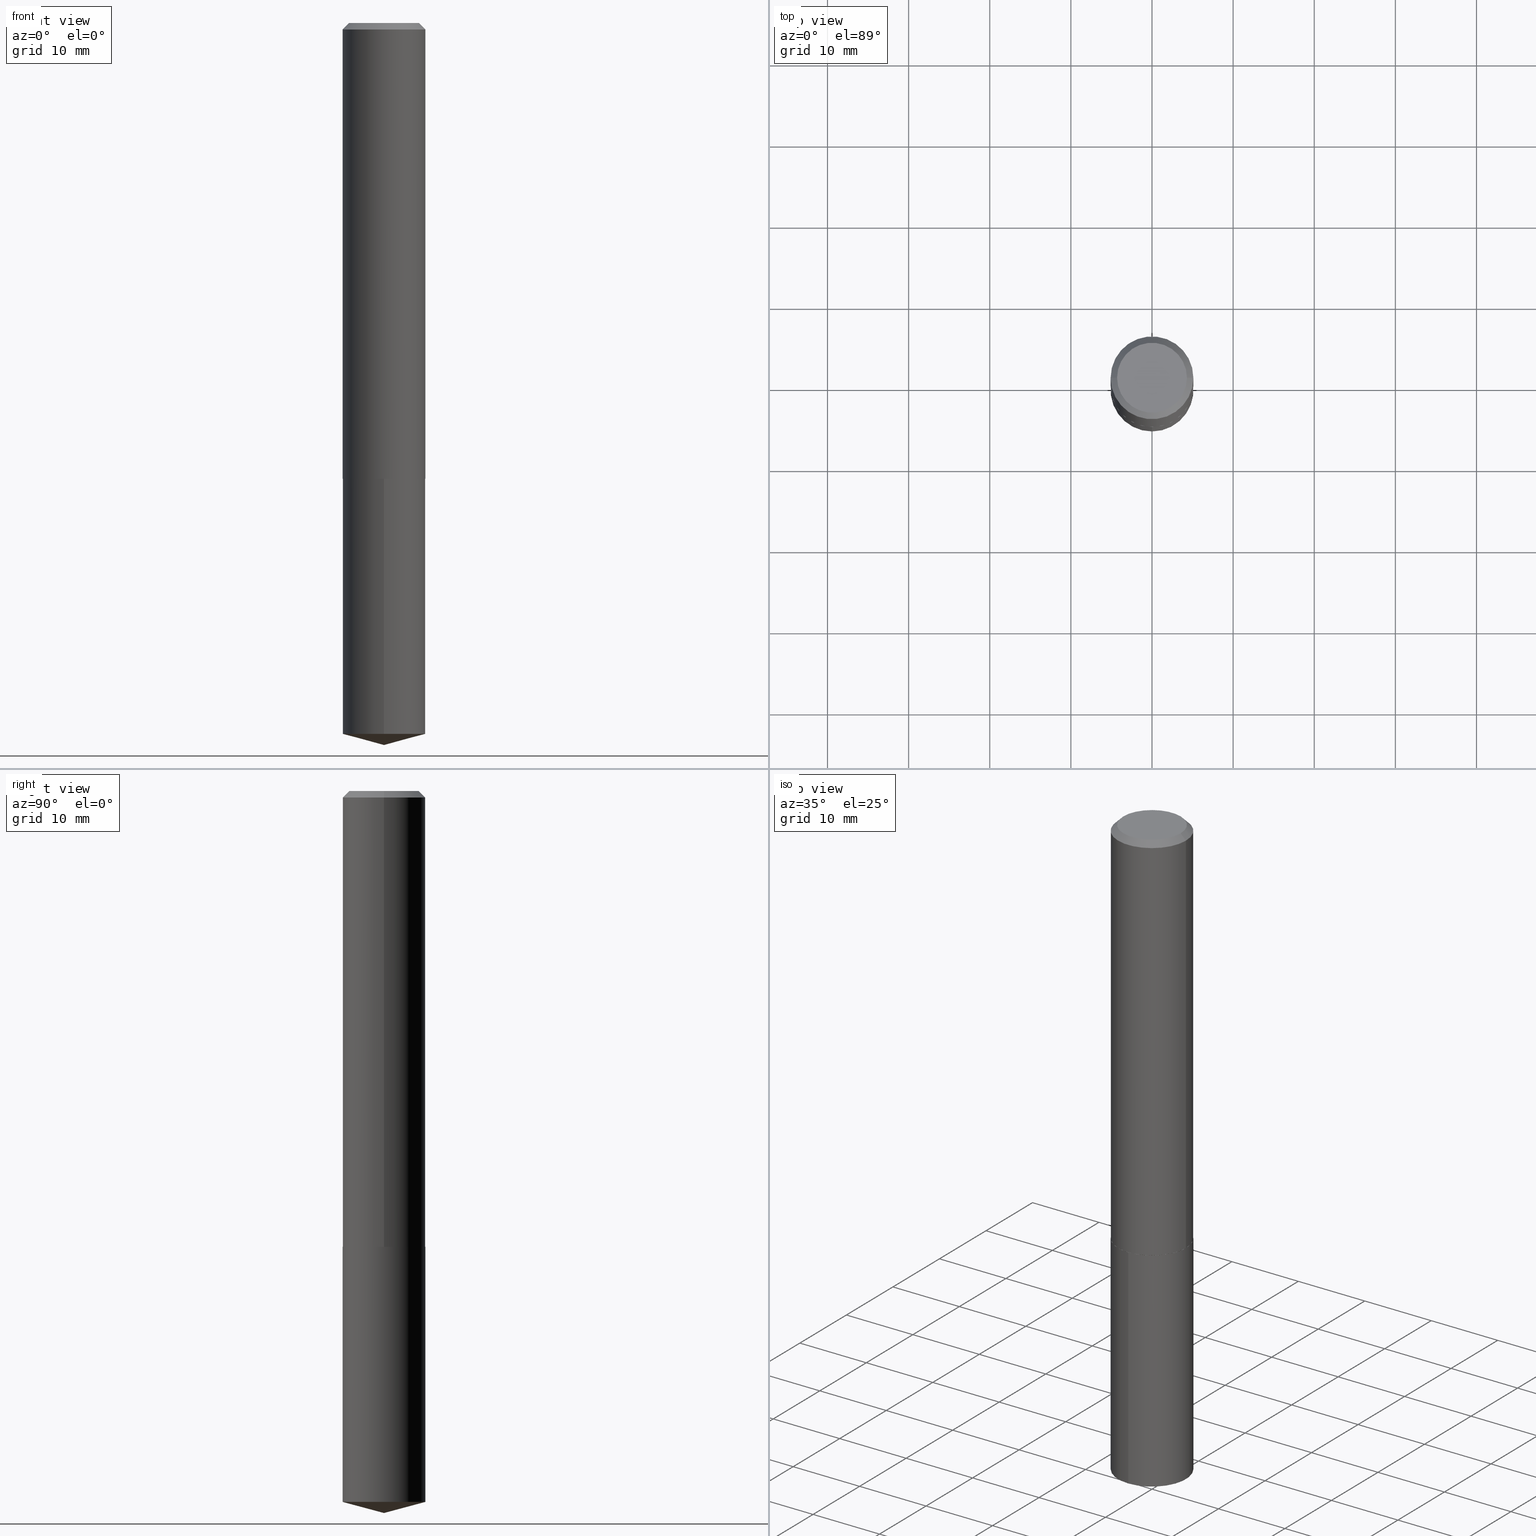
[diagram: canonical four-view strip — front | top / right | iso, engineering-drawing reading convention]
A machine part, canonical four-view strip (front | top / right | iso — engineering-drawing reading convention). The complete STEP part file that produces these views, byte-faithful:
ISO-10303-21;
HEADER;
FILE_DESCRIPTION (( 'STEP AP203' ),
    '1' );
FILE_NAME ('63027.STEP',
    '2024-04-23T08:01:28',
    ( '' ),
    ( '' ),
    'SwSTEP 2.0',
    'SolidWorks 2023',
    '' );
FILE_SCHEMA (( 'CONFIG_CONTROL_DESIGN' ));
ENDSEC;

DATA;
#1 = CARTESIAN_POINT ( 'NONE',  ( 5.410844280565232832E-29, -7.725251610324343671E-15, -2.212599999999999678 ) ) ;
#2 = DATE_AND_TIME ( #282, #208 ) ;
#3 = EDGE_CURVE ( 'NONE', #213, #176, #100, .T. ) ;
#4 = CARTESIAN_POINT ( 'NONE',  ( 0.2008000000000001450, -1.402178905679403337E-15, 9.791362965798246718E-30 ) ) ;
#5 = ORIENTED_EDGE ( 'NONE', *, *, #239, .F. ) ;
#6 = FACE_OUTER_BOUND ( 'NONE', #43, .T. ) ;
#7 = ORIENTED_EDGE ( 'NONE', *, *, #168, .T. ) ;
#8 = ORIENTED_EDGE ( 'NONE', *, *, #373, .F. ) ;
#9 = PERSON_AND_ORGANIZATION_ROLE ( 'classification_officer' ) ;
#10 = CC_DESIGN_DATE_AND_TIME_ASSIGNMENT ( #348, #69, ( #203 ) ) ;
#11 = VERTEX_POINT ( 'NONE', #53 ) ;
#12 = CARTESIAN_POINT ( 'NONE',  ( -0.1695500000000000063, 1.238515717921129883E-15, 4.837354856547397732E-19 ) ) ;
#13 = DIRECTION ( 'NONE',  ( -2.445182074429976905E-29, 3.491891955036292405E-15, 1.000000000000000000 ) ) ;
#14 = VERTEX_POINT ( 'NONE', #187 ) ;
#15 = CC_DESIGN_APPROVAL ( #236, ( #349 ) ) ;
#16 =( NAMED_UNIT ( * ) SI_UNIT ( $, .STERADIAN. ) SOLID_ANGLE_UNIT ( ) );
#17 = DIRECTION ( 'NONE',  ( 1.000000000000000000, -6.982962677686266711E-15, 0.000000000000000000 ) ) ;
#18 = ADVANCED_FACE ( 'NONE', ( #360 ), #276, .T. ) ;
#19 = EDGE_LOOP ( 'NONE', ( #382, #202, #7, #24 ) ) ;
#20 = DIRECTION ( 'NONE',  ( -2.445468806185136597E-29, 3.491481338843145583E-15, 1.000000000000000000 ) ) ;
#21 = AXIS2_PLACEMENT_3D ( 'NONE', #169, #67, #105 ) ;
#22 = EDGE_CURVE ( 'NONE', #177, #204, #190, .T. ) ;
#23 = APPROVAL_STATUS ( 'not_yet_approved' ) ;
#24 = ORIENTED_EDGE ( 'NONE', *, *, #22, .F. ) ;
#25 = ORIENTED_EDGE ( 'NONE', *, *, #201, .F. ) ;
#26 = CARTESIAN_POINT ( 'NONE',  ( 0.2008000000000002838, -9.125684775334325109E-15, -2.212099999999999511 ) ) ;
#27 = AXIS2_PLACEMENT_3D ( 'NONE', #106, #230, #265 ) ;
#28 = ORIENTED_EDGE ( 'NONE', *, *, #335, .F. ) ;
#29 = PERSON_AND_ORGANIZATION_ROLE ( 'creator' ) ;
#30 = DIRECTION ( 'NONE',  ( -0.7071067811865450192, 2.468850131082230634E-15, -0.7071067811865500152 ) ) ;
#31 = DIRECTION ( 'NONE',  ( 1.000000000000000000, -6.982962677686262766E-15, 0.000000000000000000 ) ) ;
#32 = DIRECTION ( 'NONE',  ( -2.445468806185136597E-29, 3.491481338843145583E-15, 1.000000000000000000 ) ) ;
#33 = FACE_OUTER_BOUND ( 'NONE', #19, .T. ) ;
#34 = LENGTH_MEASURE_WITH_UNIT ( LENGTH_MEASURE( 0.02539999999999999897 ), #389 );
#35 = CIRCLE ( 'NONE', #27, 0.2008000000000000063 ) ;
#36 = CONICAL_SURFACE ( 'NONE', #280, 0.2008000000000002838, 0.7853981633971067744 ) ;
#37 = DIRECTION ( 'NONE',  ( -2.445468806185136877E-29, 3.491481338843145188E-15, 1.000000000000000000 ) ) ;
#38 = DIRECTION ( 'NONE',  ( -2.445182074429976905E-29, 3.491891955036292405E-15, 1.000000000000000000 ) ) ;
#39 = EDGE_CURVE ( 'NONE', #14, #381, #222, .T. ) ;
#40 = CIRCLE ( 'NONE', #323, 0.2003000000000004499 ) ;
#41 = VECTOR ( 'NONE', #91, 39.37007874015748143 ) ;
#42 = ORIENTED_EDGE ( 'NONE', *, *, #232, .T. ) ;
#43 = EDGE_LOOP ( 'NONE', ( #46, #25 ) ) ;
#44 = DIRECTION ( 'NONE',  ( 1.000000000000000000, -6.982962677686267499E-15, 4.876167740117660532E-29 ) ) ;
#45 = EDGE_CURVE ( 'NONE', #103, #11, #296, .T. ) ;
#46 = ORIENTED_EDGE ( 'NONE', *, *, #74, .F. ) ;
#47 = APPROVAL_PERSON_ORGANIZATION ( #93, #288, #58 ) ;
#48 = CARTESIAN_POINT ( 'NONE',  ( 5.409621546162140031E-29, -7.723505869654921378E-15, -2.212099999999999511 ) ) ;
#49 = VECTOR ( 'NONE', #252, 39.37007874015748143 ) ;
#50 = DIRECTION ( 'NONE',  ( -2.445468806185136597E-29, 3.491481338843145583E-15, 1.000000000000000000 ) ) ;
#51 = EDGE_LOOP ( 'NONE', ( #210, #279, #191, #266 ) ) ;
#52 = CARTESIAN_POINT ( 'NONE',  ( 7.642090019328607041E-31, -1.091087918388490883E-16, -0.03125000000000022898 ) ) ;
#53 = CARTESIAN_POINT ( 'NONE',  ( -1.402178905679348314E-15, -0.2008000000000077223, -2.212599999999998790 ) ) ;
#54 = ORIENTED_EDGE ( 'NONE', *, *, #125, .F. ) ;
#55 = FACE_OUTER_BOUND ( 'NONE', #363, .T. ) ;
#56 = VECTOR ( 'NONE', #37, 39.37007874015748143 ) ;
#57 = CARTESIAN_POINT ( 'NONE',  ( 7.642090019328607041E-31, -1.091087918388490883E-16, -0.03125000000000022898 ) ) ;
#58 = APPROVAL_ROLE ( '' ) ;
#59 = CARTESIAN_POINT ( 'NONE',  ( 8.568953442234210491E-29, -1.223342316247375196E-14, -3.503899999999999793 ) ) ;
#60 = AXIS2_PLACEMENT_3D ( 'NONE', #351, #209, #273 ) ;
#61 = CC_DESIGN_PERSON_AND_ORGANIZATION_ASSIGNMENT ( #318, #376, ( #244 ) ) ;
#62 = CARTESIAN_POINT ( 'NONE',  ( 0.2008000000000000063, -1.486696789791372782E-15, -0.03125000000000022898 ) ) ;
#63 = CC_DESIGN_APPROVAL ( #97, ( #203 ) ) ;
#64 = LINE ( 'NONE', #4, #49 ) ;
#65 = FACE_OUTER_BOUND ( 'NONE', #150, .T. ) ;
#66 = ORIENTED_EDGE ( 'NONE', *, *, #373, .T. ) ;
#67 = DIRECTION ( 'NONE',  ( -2.445468806185136597E-29, 3.491481338843145583E-15, 1.000000000000000000 ) ) ;
#68 = FACE_OUTER_BOUND ( 'NONE', #377, .T. ) ;
#69 = DATE_TIME_ROLE ( 'classification_date' ) ;
#70 = CARTESIAN_POINT ( 'NONE',  ( 5.410844280565231711E-29, -7.725251610324342093E-15, -2.212599999999999678 ) ) ;
#71 = AXIS2_PLACEMENT_3D ( 'NONE', #253, #372, #317 ) ;
#72 = LOCAL_TIME ( 4, 1, 28.00000000000000000, #341 ) ;
#73 = CALENDAR_DATE ( 2024, 23, 4 ) ;
#74 = EDGE_CURVE ( 'NONE', #14, #313, #40, .T. ) ;
#75 = CARTESIAN_POINT ( 'NONE',  ( -1.402178905679348314E-15, -0.2008000000000077223, -2.212599999999998790 ) ) ;
#76 = DIRECTION ( 'NONE',  ( -2.445182074429976905E-29, 3.491891955036292405E-15, 1.000000000000000000 ) ) ;
#77 = ORIENTED_EDGE ( 'NONE', *, *, #316, .F. ) ;
#78 = LOCAL_TIME ( 4, 1, 28.00000000000000000, #194 ) ;
#79 = DIRECTION ( 'NONE',  ( -2.445182074429977185E-29, 3.491891955036292405E-15, 1.000000000000000000 ) ) ;
#80 = CARTESIAN_POINT ( 'NONE',  ( 5.410844280565231711E-29, -7.725251610324342093E-15, -2.212599999999999678 ) ) ;
#81 = CARTESIAN_POINT ( 'NONE',  ( 8.567673470595195228E-29, -1.223524022125166544E-14, -3.503899999999999793 ) ) ;
#82 = ADVANCED_FACE ( 'NONE', ( #33 ), #250, .T. ) ;
#83 = SHAPE_DEFINITION_REPRESENTATION ( #181, #120 ) ;
#84 = CIRCLE ( 'NONE', #152, 0.2008000000000000063 ) ;
#85 = CARTESIAN_POINT ( 'NONE',  ( -8.769870291105312681E-28, 1.252417295300385856E-13, 35.86617874015747987 ) ) ;
#86 = ORIENTED_EDGE ( 'NONE', *, *, #239, .T. ) ;
#87 = PLANE ( 'NONE',  #60 ) ;
#88 = ADVANCED_FACE ( 'NONE', ( #386 ), #87, .F. ) ;
#89 = DATE_AND_TIME ( #331, #153 ) ;
#90 = CYLINDRICAL_SURFACE ( 'NONE', #324, 0.2008000000000001450 ) ;
#91 = DIRECTION ( 'NONE',  ( -6.745023994389849388E-15, -0.9659258262890690894, 0.2588190451025179084 ) ) ;
#92 = AXIS2_PLACEMENT_3D ( 'NONE', #48, #20, #274 ) ;
#93 = PERSON_AND_ORGANIZATION ( #214, #180 ) ;
#94 = DIRECTION ( 'NONE',  ( -2.445468806185136597E-29, 3.491481338843145583E-15, 1.000000000000000000 ) ) ;
#95 = DIRECTION ( 'NONE',  ( -2.445468806185136597E-29, 3.491481338843145583E-15, 1.000000000000000000 ) ) ;
#96 = PERSON_AND_ORGANIZATION_ROLE ( 'design_supplier' ) ;
#97 = APPROVAL ( #134, 'UNSPECIFIED' ) ;
#98 = CARTESIAN_POINT ( 'NONE',  ( 0.2008000000000002838, -9.125684775334325109E-15, -2.212099999999999511 ) ) ;
#99 = APPROVAL_ROLE ( '' ) ;
#100 = LINE ( 'NONE', #62, #170 ) ;
#101 = VECTOR ( 'NONE', #113, 39.37007874015748143 ) ;
#102 = DIRECTION ( 'NONE',  ( -6.982962677686266711E-15, -1.000000000000000000, 4.081446205673699815E-15 ) ) ;
#103 = VERTEX_POINT ( 'NONE', #183 ) ;
#104 = DIRECTION ( 'NONE',  ( 0.000000000000000000, 0.000000000000000000, 1.000000000000000000 ) ) ;
#105 = DIRECTION ( 'NONE',  ( 1.000000000000000000, -6.982962677686269077E-15, 0.000000000000000000 ) ) ;
#106 = CARTESIAN_POINT ( 'NONE',  ( 5.410844280565231711E-29, -7.725251610324342093E-15, -2.212599999999999678 ) ) ;
#107 = ORIENTED_EDGE ( 'NONE', *, *, #357, .F. ) ;
#108 = ORIENTED_EDGE ( 'NONE', *, *, #162, .F. ) ;
#109 = AXIS2_PLACEMENT_3D ( 'NONE', #319, #229, #346 ) ;
#110 = AXIS2_PLACEMENT_3D ( 'NONE', #263, #50, #44 ) ;
#111 = ADVANCED_FACE ( 'NONE', ( #383 ), #116, .T. ) ;
#112 = ORIENTED_EDGE ( 'NONE', *, *, #366, .F. ) ;
#113 = DIRECTION ( 'NONE',  ( 0.7071067811863059882, -2.468850131079726789E-15, 0.7071067811867890462 ) ) ;
#114 = PRODUCT_RELATED_PRODUCT_CATEGORY ( 'detail', '', ( #303 ) ) ;
#115 = ORIENTED_EDGE ( 'NONE', *, *, #142, .T. ) ;
#116 = CYLINDRICAL_SURFACE ( 'NONE', #163, 0.2008000000000000063 ) ;
#117 = AXIS2_PLACEMENT_3D ( 'NONE', #306, #76, #356 ) ;
#118 = EDGE_CURVE ( 'NONE', #103, #339, #179, .T. ) ;
#119 = DIRECTION ( 'NONE',  ( -2.445468806185136597E-29, 3.491481338843145583E-15, 1.000000000000000000 ) ) ;
#120 = ADVANCED_BREP_SHAPE_REPRESENTATION ( '63027', ( #234, #353, #260 ), #343 ) ;
#121 = AXIS2_PLACEMENT_3D ( 'NONE', #85, #310, #212 ) ;
#122 = CIRCLE ( 'NONE', #92, 0.2008000000000002838 ) ;
#123 = DIRECTION ( 'NONE',  ( 2.445468806185136597E-29, -3.491481338843145583E-15, -1.000000000000000000 ) ) ;
#124 = CARTESIAN_POINT ( 'NONE',  ( -0.2003000000000004499, -6.299385283422748403E-15, -2.212599999999999678 ) ) ;
#125 = EDGE_CURVE ( 'NONE', #204, #176, #84, .T. ) ;
#126 = DATE_TIME_ROLE ( 'creation_date' ) ;
#127 = PLANE ( 'NONE',  #148 ) ;
#128 = AXIS2_PLACEMENT_3D ( 'NONE', #157, #32, #193 ) ;
#129 = ADVANCED_FACE ( 'NONE', ( #65 ), #321, .T. ) ;
#130 = CARTESIAN_POINT ( 'NONE',  ( 1.426769813406365626E-15, 0.2007999999999922902, -2.212600000000000122 ) ) ;
#131 = CC_DESIGN_DATE_AND_TIME_ASSIGNMENT ( #2, #126, ( #349 ) ) ;
#132 = APPLICATION_CONTEXT ( 'configuration controlled 3d designs of mechanical parts and assemblies' ) ;
#133 = DIRECTION ( 'NONE',  ( 1.000000000000000000, -6.982962677686265922E-15, 4.876176775795935793E-29 ) ) ;
#134 = APPROVAL_STATUS ( 'not_yet_approved' ) ;
#135 = DIRECTION ( 'NONE',  ( -2.445468806185136597E-29, 3.491481338843145583E-15, 1.000000000000000000 ) ) ;
#136 = DIRECTION ( 'NONE',  ( -0.7071067811863059882, 7.493145998869481680E-15, 0.7071067811867890462 ) ) ;
#137 = CARTESIAN_POINT ( 'NONE',  ( 0.1695500000000000063, -1.324947112656768051E-15, 4.837354856719826240E-19 ) ) ;
#138 =( NAMED_UNIT ( * ) PLANE_ANGLE_UNIT ( ) SI_UNIT ( $, .RADIAN. ) );
#139 = APPROVAL_DATE_TIME ( #320, #288 ) ;
#140 = ORIENTED_EDGE ( 'NONE', *, *, #142, .F. ) ;
#141 = ORIENTED_EDGE ( 'NONE', *, *, #118, .T. ) ;
#142 = EDGE_CURVE ( 'NONE', #257, #11, #35, .T. ) ;
#143 = DIRECTION ( 'NONE',  ( -6.982962677686266711E-15, -1.000000000000000000, 2.720964137115799877E-15 ) ) ;
#144 = ORIENTED_EDGE ( 'NONE', *, *, #168, .F. ) ;
#145 = EDGE_LOOP ( 'NONE', ( #350, #332, #289, #54 ) ) ;
#146 = DIRECTION ( 'NONE',  ( -2.445468806185136597E-29, 3.491481338843145583E-15, 1.000000000000000000 ) ) ;
#147 = DIRECTION ( 'NONE',  ( -1.000000000000000000, 6.982962677686266711E-15, 0.000000000000000000 ) ) ;
#148 = AXIS2_PLACEMENT_3D ( 'NONE', #1, #167, #133 ) ;
#149 = DIRECTION ( 'NONE',  ( 1.000000000000000000, -6.982962677686266711E-15, 4.876176775795936353E-29 ) ) ;
#150 = EDGE_LOOP ( 'NONE', ( #141, #66, #108, #151 ) ) ;
#151 = ORIENTED_EDGE ( 'NONE', *, *, #45, .F. ) ;
#152 = AXIS2_PLACEMENT_3D ( 'NONE', #225, #135, #342 ) ;
#153 = LOCAL_TIME ( 4, 1, 28.00000000000000000, #243 ) ;
#154 = APPROVAL_ROLE ( '' ) ;
#155 = ORIENTED_EDGE ( 'NONE', *, *, #45, .T. ) ;
#156 = ADVANCED_FACE ( 'NONE', ( #68 ), #200, .F. ) ;
#157 = CARTESIAN_POINT ( 'NONE',  ( 5.409621546162140031E-29, -7.723505869654921378E-15, -2.212099999999999511 ) ) ;
#158 = COORDINATED_UNIVERSAL_TIME_OFFSET ( 5, 0, .BEHIND. ) ;
#159 = FACE_OUTER_BOUND ( 'NONE', #291, .T. ) ;
#160 = VERTEX_POINT ( 'NONE', #81 ) ;
#161 = CARTESIAN_POINT ( 'NONE',  ( -0.2008000000000001450, 1.426769813406282204E-15, -9.877221661231856994E-30 ) ) ;
#162 = EDGE_CURVE ( 'NONE', #11, #257, #165, .T. ) ;
#163 = AXIS2_PLACEMENT_3D ( 'NONE', #80, #256, #102 ) ;
#164 =( CONVERSION_BASED_UNIT ( 'INCH', #34 ) LENGTH_UNIT ( ) NAMED_UNIT ( #304 ) );
#165 = CIRCLE ( 'NONE', #117, 0.2008000000000000063 ) ;
#166 = VERTEX_POINT ( 'NONE', #211 ) ;
#167 = DIRECTION ( 'NONE',  ( -2.438088387897960049E-29, 3.491481338843145188E-15, 1.000000000000000000 ) ) ;
#168 = EDGE_CURVE ( 'NONE', #176, #204, #334, .T. ) ;
#169 = CARTESIAN_POINT ( 'NONE',  ( 5.410844280565232832E-29, -7.725251610324343671E-15, -2.212599999999999678 ) ) ;
#170 = VECTOR ( 'NONE', #198, 39.37007874015748143 ) ;
#171 = SECURITY_CLASSIFICATION_LEVEL ( 'unclassified' ) ;
#172 = CIRCLE ( 'NONE', #384, 0.1695500000000000063 ) ;
#173 = LOCAL_TIME ( 4, 1, 28.00000000000000000, #374 ) ;
#174 = EDGE_LOOP ( 'NONE', ( #311, #246, #387, #240 ) ) ;
#175 = CARTESIAN_POINT ( 'NONE',  ( 5.410844280565231711E-29, -7.725251610324342093E-15, -2.212599999999999678 ) ) ;
#176 = VERTEX_POINT ( 'NONE', #271 ) ;
#177 = VERTEX_POINT ( 'NONE', #12 ) ;
#178 = CC_DESIGN_PERSON_AND_ORGANIZATION_ASSIGNMENT ( #259, #96, ( #244 ) ) ;
#179 = CIRCLE ( 'NONE', #109, 0.2008000000000000063 ) ;
#180 = ORGANIZATION ( 'UNSPECIFIED', 'UNSPECIFIED', '' ) ;
#181 = PRODUCT_DEFINITION_SHAPE ( 'NONE', 'NONE',  #349 ) ;
#182 = ORIENTED_EDGE ( 'NONE', *, *, #316, .T. ) ;
#183 = CARTESIAN_POINT ( 'NONE',  ( -1.402178905679318140E-15, -0.2008000000000121354, -3.450095802159831138 ) ) ;
#184 = CARTESIAN_POINT ( 'NONE',  ( 0.000000000000000000, 0.000000000000000000, 0.000000000000000000 ) ) ;
#185 = VECTOR ( 'NONE', #30, 39.37007874015748143 ) ;
#186 = CIRCLE ( 'NONE', #268, 0.2008000000000002838 ) ;
#187 = CARTESIAN_POINT ( 'NONE',  ( 0.2003000000000004499, -9.123939034664905972E-15, -2.212599999999999678 ) ) ;
#188 = PERSON_AND_ORGANIZATION ( #214, #180 ) ;
#189 = DIRECTION ( 'NONE',  ( -2.445468806185136597E-29, 3.491481338843145583E-15, 1.000000000000000000 ) ) ;
#190 = LINE ( 'NONE', #300, #185 ) ;
#191 = ORIENTED_EDGE ( 'NONE', *, *, #22, .T. ) ;
#192 = CIRCLE ( 'NONE', #110, 0.1695500000000000063 ) ;
#193 = DIRECTION ( 'NONE',  ( 1.000000000000000000, -6.982962677686262766E-15, 0.000000000000000000 ) ) ;
#194 = COORDINATED_UNIVERSAL_TIME_OFFSET ( 5, 0, .BEHIND. ) ;
#195 = FACE_OUTER_BOUND ( 'NONE', #233, .T. ) ;
#196 = AXIS2_PLACEMENT_3D ( 'NONE', #52, #380, #147 ) ;
#197 = EDGE_CURVE ( 'NONE', #381, #166, #122, .T. ) ;
#198 = DIRECTION ( 'NONE',  ( 0.7071067811865450192, -7.319954787623246579E-15, -0.7071067811865500152 ) ) ;
#199 = CARTESIAN_POINT ( 'NONE',  ( 1.426769813406335057E-15, 0.2007999999999922902, -2.212600000000000122 ) ) ;
#200 = PLANE ( 'NONE',  #326 ) ;
#201 = EDGE_CURVE ( 'NONE', #313, #14, #352, .T. ) ;
#202 = ORIENTED_EDGE ( 'NONE', *, *, #3, .T. ) ;
#203 = SECURITY_CLASSIFICATION ( '', '', #171 ) ;
#204 = VERTEX_POINT ( 'NONE', #322 ) ;
#205 = ORIENTED_EDGE ( 'NONE', *, *, #379, .F. ) ;
#206 = FACE_OUTER_BOUND ( 'NONE', #145, .T. ) ;
#207 = ORIENTED_EDGE ( 'NONE', *, *, #118, .F. ) ;
#208 = LOCAL_TIME ( 4, 1, 28.00000000000000000, #158 ) ;
#209 = DIRECTION ( 'NONE',  ( 2.438088387897960049E-29, -3.491481338843145188E-15, -1.000000000000000000 ) ) ;
#210 = ORIENTED_EDGE ( 'NONE', *, *, #3, .F. ) ;
#211 = CARTESIAN_POINT ( 'NONE',  ( -0.2008000000000002838, -6.296736056248638780E-15, -2.212099999999999511 ) ) ;
#212 = DIRECTION ( 'NONE',  ( -6.982962677686266711E-15, -1.000000000000000000, 3.510303681827549320E-15 ) ) ;
#213 = VERTEX_POINT ( 'NONE', #137 ) ;
#214 = PERSON ( 'UNSPECIFIED', 'UNSPECIFIED', 'UNSPECIFIED', ('UNSPECIFIED'), ('UNSPECIFIED'), ('UNSPECIFIED') ) ;
#215 = PERSON_AND_ORGANIZATION_ROLE ( 'design_owner' ) ;
#216 = EDGE_LOOP ( 'NONE', ( #77, #330, #207 ) ) ;
#217 = DIRECTION ( 'NONE',  ( -1.000000000000000000, 6.982962677686266711E-15, 0.000000000000000000 ) ) ;
#218 = VECTOR ( 'NONE', #79, 39.37007874015748143 ) ;
#219 = AXIS2_PLACEMENT_3D ( 'NONE', #362, #13, #143 ) ;
#220 = LINE ( 'NONE', #345, #375 ) ;
#221 = MECHANICAL_CONTEXT ( 'NONE', #308, 'mechanical' ) ;
#222 = LINE ( 'NONE', #26, #101 ) ;
#223 = CARTESIAN_POINT ( 'NONE',  ( -1.182960040634198066E-47, 1.688953421129324663E-33, 4.837354856632103020E-19 ) ) ;
#224 = DIRECTION ( 'NONE',  ( 6.863315791527703726E-15, 0.9659258262890708657, 0.2588190451025111360 ) ) ;
#225 = CARTESIAN_POINT ( 'NONE',  ( 7.642090019328607041E-31, -1.091087918388490883E-16, -0.03125000000000022898 ) ) ;
#226 = AXIS2_PLACEMENT_3D ( 'NONE', #70, #38, #294 ) ;
#227 = LINE ( 'NONE', #161, #56 ) ;
#228 = APPROVAL_PERSON_ORGANIZATION ( #329, #236, #154 ) ;
#229 = DIRECTION ( 'NONE',  ( -2.445182074429976905E-29, 3.491891955036292405E-15, 1.000000000000000000 ) ) ;
#230 = DIRECTION ( 'NONE',  ( -2.445182074429976905E-29, 3.491891955036292405E-15, 1.000000000000000000 ) ) ;
#231 = ORIENTED_EDGE ( 'NONE', *, *, #39, .T. ) ;
#232 = EDGE_CURVE ( 'NONE', #213, #177, #192, .T. ) ;
#233 = EDGE_LOOP ( 'NONE', ( #205, #182, #5 ) ) ;
#234 = MANIFOLD_SOLID_BREP ( 'Body-Move/Copy2[1]', #367 ) ;
#235 = ADVANCED_FACE ( 'NONE', ( #206 ), #299, .T. ) ;
#236 = APPROVAL ( #23, 'UNSPECIFIED' ) ;
#237 = EDGE_LOOP ( 'NONE', ( #8, #86, #155, #140 ) ) ;
#238 = ORIENTED_EDGE ( 'NONE', *, *, #201, .T. ) ;
#239 = EDGE_CURVE ( 'NONE', #339, #103, #388, .T. ) ;
#240 = ORIENTED_EDGE ( 'NONE', *, *, #39, .F. ) ;
#241 = CONICAL_SURFACE ( 'NONE', #292, 0.2008000000000000063, 0.7853981633974447263 ) ;
#242 = DIRECTION ( 'NONE',  ( 6.982962677686265922E-15, 1.000000000000000000, -3.491891955036292405E-15 ) ) ;
#243 = COORDINATED_UNIVERSAL_TIME_OFFSET ( 5, 0, .BEHIND. ) ;
#244 = PRODUCT_DEFINITION_FORMATION_WITH_SPECIFIED_SOURCE ( 'ANY', '', #303, .NOT_KNOWN. ) ;
#245 = CARTESIAN_POINT ( 'NONE',  ( 0.000000000000000000, 0.000000000000000000, 0.000000000000000000 ) ) ;
#246 = ORIENTED_EDGE ( 'NONE', *, *, #335, .T. ) ;
#247 = ADVANCED_FACE ( 'NONE', ( #270 ), #36, .T. ) ;
#248 = ORIENTED_EDGE ( 'NONE', *, *, #284, .T. ) ;
#249 = CARTESIAN_POINT ( 'NONE',  ( 8.567673470595196349E-29, -1.223524022125166544E-14, -3.503899999999999793 ) ) ;
#250 = CONICAL_SURFACE ( 'NONE', #196, 0.2008000000000000063, 0.7853981633974447263 ) ;
#251 = CONICAL_SURFACE ( 'NONE', #128, 0.2008000000000002838, 0.7853981633971067744 ) ;
#252 = DIRECTION ( 'NONE',  ( -2.445468806185136877E-29, 3.491481338843145188E-15, 1.000000000000000000 ) ) ;
#253 = CARTESIAN_POINT ( 'NONE',  ( -8.769870291105312681E-28, 1.252417295300385856E-13, 35.86617874015747987 ) ) ;
#254 = ADVANCED_FACE ( 'NONE', ( #159 ), #90, .T. ) ;
#255 = LINE ( 'NONE', #249, #41 ) ;
#256 = DIRECTION ( 'NONE',  ( -2.445182074429976905E-29, 3.491891955036292405E-15, 1.000000000000000000 ) ) ;
#257 = VERTEX_POINT ( 'NONE', #130 ) ;
#258 = LINE ( 'NONE', #59, #368 ) ;
#259 = PERSON_AND_ORGANIZATION ( #214, #180 ) ;
#260 = AXIS2_PLACEMENT_3D ( 'NONE', #290, #104, #359 ) ;
#261 = CALENDAR_DATE ( 2024, 23, 4 ) ;
#262 = CC_DESIGN_PERSON_AND_ORGANIZATION_ASSIGNMENT ( #188, #215, ( #303 ) ) ;
#263 = CARTESIAN_POINT ( 'NONE',  ( -1.182960040634198066E-47, 1.688953421129324663E-33, 4.837354856632103020E-19 ) ) ;
#264 = DESIGN_CONTEXT ( 'detailed design', #132, 'design' ) ;
#265 = DIRECTION ( 'NONE',  ( -6.982962677686266711E-15, -1.000000000000000000, 4.081446205673699815E-15 ) ) ;
#266 = ORIENTED_EDGE ( 'NONE', *, *, #125, .T. ) ;
#267 = EDGE_LOOP ( 'NONE', ( #248, #42 ) ) ;
#268 = AXIS2_PLACEMENT_3D ( 'NONE', #365, #314, #371 ) ;
#269 = ADVANCED_FACE ( 'NONE', ( #195 ), #328, .T. ) ;
#270 = FACE_OUTER_BOUND ( 'NONE', #174, .T. ) ;
#271 = CARTESIAN_POINT ( 'NONE',  ( 0.2008000000000000063, -1.511287697518251451E-15, -0.03125000000000022898 ) ) ;
#272 = DATE_AND_TIME ( #73, #72 ) ;
#273 = DIRECTION ( 'NONE',  ( -1.000000000000000000, 6.982962677686265922E-15, -4.876176775795935793E-29 ) ) ;
#274 = DIRECTION ( 'NONE',  ( 1.000000000000000000, -6.982962677686262766E-15, 0.000000000000000000 ) ) ;
#275 = CARTESIAN_POINT ( 'NONE',  ( 5.410844280565232832E-29, -7.725251610324343671E-15, -2.212599999999999678 ) ) ;
#276 = CONICAL_SURFACE ( 'NONE', #121, 146.9311341562588211, 1.308996938995753645 ) ;
#277 = ADVANCED_FACE ( 'NONE', ( #378 ), #241, .T. ) ;
#278 = EDGE_CURVE ( 'NONE', #166, #204, #227, .T. ) ;
#279 = ORIENTED_EDGE ( 'NONE', *, *, #284, .F. ) ;
#280 = AXIS2_PLACEMENT_3D ( 'NONE', #385, #119, #31 ) ;
#281 = APPROVAL_DATE_TIME ( #89, #236 ) ;
#282 = CALENDAR_DATE ( 2024, 23, 4 ) ;
#283 = DIRECTION ( 'NONE',  ( -2.445182074429977185E-29, 3.491891955036292405E-15, 1.000000000000000000 ) ) ;
#284 = EDGE_CURVE ( 'NONE', #177, #213, #172, .T. ) ;
#285 = DIRECTION ( 'NONE',  ( 1.000000000000000000, -6.982962677686266711E-15, 4.876176775795936353E-29 ) ) ;
#286 = LINE ( 'NONE', #199, #369 ) ;
#287 = PERSON_AND_ORGANIZATION ( #214, #180 ) ;
#288 = APPROVAL ( #336, 'UNSPECIFIED' ) ;
#289 = ORIENTED_EDGE ( 'NONE', *, *, #357, .T. ) ;
#290 = CARTESIAN_POINT ( 'NONE',  ( 0.000000000000000000, 0.000000000000000000, 0.000000000000000000 ) ) ;
#291 = EDGE_LOOP ( 'NONE', ( #347, #295, #144, #107 ) ) ;
#292 = AXIS2_PLACEMENT_3D ( 'NONE', #57, #123, #217 ) ;
#293 = PERSON_AND_ORGANIZATION ( #214, #180 ) ;
#294 = DIRECTION ( 'NONE',  ( -6.982962677686266711E-15, -1.000000000000000000, 4.081446205673699815E-15 ) ) ;
#295 = ORIENTED_EDGE ( 'NONE', *, *, #278, .T. ) ;
#296 = LINE ( 'NONE', #75, #218 ) ;
#297 = CARTESIAN_POINT ( 'NONE',  ( 7.642090019328607041E-31, -1.091087918388490883E-16, -0.03125000000000022898 ) ) ;
#298 = ADVANCED_FACE ( 'NONE', ( #55 ), #251, .T. ) ;
#299 = CYLINDRICAL_SURFACE ( 'NONE', #361, 0.2008000000000001450 ) ;
#300 = CARTESIAN_POINT ( 'NONE',  ( -0.2008000000000000063, 1.293070113840553250E-15, -0.03125000000000022898 ) ) ;
#301 = AXIS2_PLACEMENT_3D ( 'NONE', #297, #327, #17 ) ;
#302 = DIRECTION ( 'NONE',  ( 2.445182074429976625E-29, -3.491891955036292405E-15, -1.000000000000000000 ) ) ;
#303 = PRODUCT ( '63027', '63027', '', ( #221 ) ) ;
#304 = DIMENSIONAL_EXPONENTS ( 1.000000000000000000, 0.000000000000000000, 0.000000000000000000, 0.000000000000000000, 0.000000000000000000, 0.000000000000000000, 0.000000000000000000 ) ;
#305 = ADVANCED_FACE ( 'NONE', ( #6 ), #127, .F. ) ;
#306 = CARTESIAN_POINT ( 'NONE',  ( 5.410844280565231711E-29, -7.725251610324342093E-15, -2.212599999999999678 ) ) ;
#307 = APPROVAL_DATE_TIME ( #272, #97 ) ;
#308 = APPLICATION_CONTEXT ( 'configuration controlled 3d designs of mechanical parts and assemblies' ) ;
#309 = APPLICATION_PROTOCOL_DEFINITION ( 'international standard', 'config_control_design', 1994, #132 ) ;
#310 = DIRECTION ( 'NONE',  ( -2.445182074429976905E-29, 3.491891955036292405E-15, 1.000000000000000000 ) ) ;
#311 = ORIENTED_EDGE ( 'NONE', *, *, #74, .T. ) ;
#312 = CC_DESIGN_APPROVAL ( #288, ( #244 ) ) ;
#313 = VERTEX_POINT ( 'NONE', #124 ) ;
#314 = DIRECTION ( 'NONE',  ( -2.445468806185136597E-29, 3.491481338843145583E-15, 1.000000000000000000 ) ) ;
#315 = CALENDAR_DATE ( 2024, 23, 4 ) ;
#316 = EDGE_CURVE ( 'NONE', #160, #103, #255, .T. ) ;
#317 = DIRECTION ( 'NONE',  ( -6.982962677686266711E-15, -1.000000000000000000, 3.510303681827549320E-15 ) ) ;
#318 = PERSON_AND_ORGANIZATION ( #214, #180 ) ;
#319 = CARTESIAN_POINT ( 'NONE',  ( 8.436746833188797904E-29, -1.204645324627744205E-14, -3.450095802159831582 ) ) ;
#320 = DATE_AND_TIME ( #315, #78 ) ;
#321 = CYLINDRICAL_SURFACE ( 'NONE', #226, 0.2008000000000000063 ) ;
#322 = CARTESIAN_POINT ( 'NONE',  ( -0.2008000000000000063, -2.489537517340601852E-15, -0.03125000000000022898 ) ) ;
#323 = AXIS2_PLACEMENT_3D ( 'NONE', #275, #146, #355 ) ;
#324 = AXIS2_PLACEMENT_3D ( 'NONE', #245, #94, #285 ) ;
#325 = ORIENTED_EDGE ( 'NONE', *, *, #162, .T. ) ;
#326 = AXIS2_PLACEMENT_3D ( 'NONE', #175, #302, #242 ) ;
#327 = DIRECTION ( 'NONE',  ( -2.445468806185136597E-29, 3.491481338843145583E-15, 1.000000000000000000 ) ) ;
#328 = CONICAL_SURFACE ( 'NONE', #71, 146.9311341562588211, 1.308996938995753645 ) ;
#329 = PERSON_AND_ORGANIZATION ( #214, #180 ) ;
#330 = ORIENTED_EDGE ( 'NONE', *, *, #379, .T. ) ;
#331 = CALENDAR_DATE ( 2024, 23, 4 ) ;
#332 = ORIENTED_EDGE ( 'NONE', *, *, #366, .T. ) ;
#333 = DIRECTION ( 'NONE',  ( 1.000000000000000000, -6.982962677686267499E-15, 4.876167740117660532E-29 ) ) ;
#334 = CIRCLE ( 'NONE', #301, 0.2008000000000000063 ) ;
#335 = EDGE_CURVE ( 'NONE', #313, #166, #220, .T. ) ;
#336 = APPROVAL_STATUS ( 'not_yet_approved' ) ;
#337 = CC_DESIGN_PERSON_AND_ORGANIZATION_ASSIGNMENT ( #293, #9, ( #203 ) ) ;
#338 = CARTESIAN_POINT ( 'NONE',  ( 1.426769813406365626E-15, 0.2007999999999879881, -3.450095802159832026 ) ) ;
#339 = VERTEX_POINT ( 'NONE', #338 ) ;
#340 = UNCERTAINTY_MEASURE_WITH_UNIT (LENGTH_MEASURE( 1.000000000000000082E-05 ), #164, 'distance_accuracy_value', 'NONE');
#341 = COORDINATED_UNIVERSAL_TIME_OFFSET ( 5, 0, .BEHIND. ) ;
#342 = DIRECTION ( 'NONE',  ( 1.000000000000000000, -6.982962677686266711E-15, 0.000000000000000000 ) ) ;
#343 =( GEOMETRIC_REPRESENTATION_CONTEXT ( 3 ) GLOBAL_UNCERTAINTY_ASSIGNED_CONTEXT ( ( #340 ) ) GLOBAL_UNIT_ASSIGNED_CONTEXT ( ( #164, #138, #16 ) ) REPRESENTATION_CONTEXT ( 'NONE', 'WORKASPACE' ) );
#344 = APPROVAL_PERSON_ORGANIZATION ( #287, #97, #99 ) ;
#345 = CARTESIAN_POINT ( 'NONE',  ( -0.2008000000000002838, -6.296736056248638780E-15, -2.212099999999999511 ) ) ;
#346 = DIRECTION ( 'NONE',  ( -6.982962677686266711E-15, -1.000000000000000000, 2.720964137115799877E-15 ) ) ;
#347 = ORIENTED_EDGE ( 'NONE', *, *, #197, .T. ) ;
#348 = DATE_AND_TIME ( #261, #173 ) ;
#349 = PRODUCT_DEFINITION ( 'UNKNOWN', '', #244, #264 ) ;
#350 = ORIENTED_EDGE ( 'NONE', *, *, #278, .F. ) ;
#351 = CARTESIAN_POINT ( 'NONE',  ( -5.914800203170990329E-48, 8.444767105646623317E-34, 2.418677428316051510E-19 ) ) ;
#352 = CIRCLE ( 'NONE', #21, 0.2003000000000004499 ) ;
#353 = MANIFOLD_SOLID_BREP ( 'Body-Move/Copy2[2]', #358 ) ;
#354 = CC_DESIGN_PERSON_AND_ORGANIZATION_ASSIGNMENT ( #390, #29, ( #349 ) ) ;
#355 = DIRECTION ( 'NONE',  ( 1.000000000000000000, -6.982962677686269077E-15, 0.000000000000000000 ) ) ;
#356 = DIRECTION ( 'NONE',  ( -6.982962677686266711E-15, -1.000000000000000000, 4.081446205673699815E-15 ) ) ;
#357 = EDGE_CURVE ( 'NONE', #381, #176, #64, .T. ) ;
#358 = CLOSED_SHELL ( 'NONE', ( #82, #254, #247, #305, #298, #235, #277, #88 ) ) ;
#359 = DIRECTION ( 'NONE',  ( 1.000000000000000000, 0.000000000000000000, 0.000000000000000000 ) ) ;
#360 = FACE_OUTER_BOUND ( 'NONE', #216, .T. ) ;
#361 = AXIS2_PLACEMENT_3D ( 'NONE', #184, #189, #149 ) ;
#362 = CARTESIAN_POINT ( 'NONE',  ( 8.436746833188797904E-29, -1.204645324627744205E-14, -3.450095802159831582 ) ) ;
#363 = EDGE_LOOP ( 'NONE', ( #28, #238, #231, #112 ) ) ;
#364 = APPLICATION_PROTOCOL_DEFINITION ( 'international standard', 'config_control_design', 1994, #308 ) ;
#365 = CARTESIAN_POINT ( 'NONE',  ( 5.409621546162140031E-29, -7.723505869654921378E-15, -2.212099999999999511 ) ) ;
#366 = EDGE_CURVE ( 'NONE', #166, #381, #186, .T. ) ;
#367 = CLOSED_SHELL ( 'NONE', ( #129, #18, #269, #111, #156 ) ) ;
#368 = VECTOR ( 'NONE', #224, 39.37007874015748143 ) ;
#369 = VECTOR ( 'NONE', #283, 39.37007874015748143 ) ;
#370 = CC_DESIGN_SECURITY_CLASSIFICATION ( #203, ( #244 ) ) ;
#371 = DIRECTION ( 'NONE',  ( 1.000000000000000000, -6.982962677686262766E-15, 0.000000000000000000 ) ) ;
#372 = DIRECTION ( 'NONE',  ( -2.445182074429976905E-29, 3.491891955036292405E-15, 1.000000000000000000 ) ) ;
#373 = EDGE_CURVE ( 'NONE', #339, #257, #286, .T. ) ;
#374 = COORDINATED_UNIVERSAL_TIME_OFFSET ( 5, 0, .BEHIND. ) ;
#375 = VECTOR ( 'NONE', #136, 39.37007874015748143 ) ;
#376 = PERSON_AND_ORGANIZATION_ROLE ( 'creator' ) ;
#377 = EDGE_LOOP ( 'NONE', ( #325, #115 ) ) ;
#378 = FACE_OUTER_BOUND ( 'NONE', #51, .T. ) ;
#379 = EDGE_CURVE ( 'NONE', #160, #339, #258, .T. ) ;
#380 = DIRECTION ( 'NONE',  ( 2.445468806185136597E-29, -3.491481338843145583E-15, -1.000000000000000000 ) ) ;
#381 = VERTEX_POINT ( 'NONE', #98 ) ;
#382 = ORIENTED_EDGE ( 'NONE', *, *, #232, .F. ) ;
#383 = FACE_OUTER_BOUND ( 'NONE', #237, .T. ) ;
#384 = AXIS2_PLACEMENT_3D ( 'NONE', #223, #95, #333 ) ;
#385 = CARTESIAN_POINT ( 'NONE',  ( 5.409621546162140031E-29, -7.723505869654921378E-15, -2.212099999999999511 ) ) ;
#386 = FACE_OUTER_BOUND ( 'NONE', #267, .T. ) ;
#387 = ORIENTED_EDGE ( 'NONE', *, *, #197, .F. ) ;
#388 = CIRCLE ( 'NONE', #219, 0.2008000000000000063 ) ;
#389 =( LENGTH_UNIT ( ) NAMED_UNIT ( * ) SI_UNIT ( $, .METRE. ) );
#390 = PERSON_AND_ORGANIZATION ( #214, #180 ) ;
ENDSEC;
END-ISO-10303-21;
